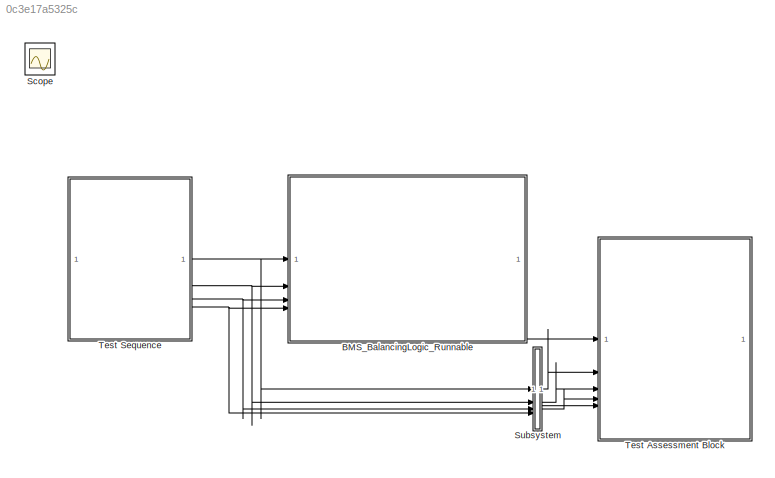
MODEL slx_0c3e17a5325c
KIND model
CONFIG AbsTol = auto
CONFIG EnableMultiTasking = on
CONFIG FixedStep = auto
CONFIG MaxStep = auto
CONFIG MinStep = auto
CONFIG RelTol = 1e-3
CONFIG SampleTimeConstraint = Unconstrained
CONFIG SolverName = FixedStepDiscrete
CONFIG StartTime = 0.0
CONFIG StopTime = 10.0
WORKSPACE source: mxarray member
WORKSPACE BATT: object (value not decoded)
WORKSPACE Schedule: object (value not decoded)
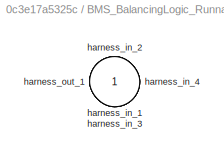
BLOCK [SubSystem] BMS_BalancingLogic_Runnable
  Priority = 2
  Tag = __SL_testing_harness_stub_
BLOCK [Inport] BMS_BalancingLogic_Runnable/harness_in_1
BLOCK [Inport] BMS_BalancingLogic_Runnable/harness_in_2
  Port = 2
BLOCK [Inport] BMS_BalancingLogic_Runnable/harness_in_3
  Port = 3
BLOCK [Inport] BMS_BalancingLogic_Runnable/harness_in_4
  Port = 4
BLOCK [Outport] BMS_BalancingLogic_Runnable/harness_out_1
BLOCK [Scope] Scope
  Floating = off
  IOType = viewer
  NumInputPorts = 1
  ScopeSpecificationString = Simulink.scopes.TimeScopeBlockCfg('CurrentConfiguration', extmgr.ConfigurationSet(extmgr.Configuration('Core','General UI',true),extmgr.Configuration('Core','Source UI',true),extmgr.Configuration('Sources','WiredSimulink',true),extmgr.Configuration('Visuals','Time Domain',true,'SerializedDisplays',{struct('MinYLimReal','-0.5','MaxYLimReal','4.5','YLabelReal','','MinYLimMag','0.00000','MaxYLimMag',...<+3690ch>
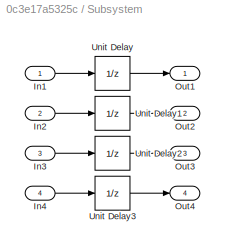
BLOCK [SubSystem] Subsystem
BLOCK [Inport] Subsystem/In1
BLOCK [Inport] Subsystem/In2
  Port = 2
BLOCK [Inport] Subsystem/In3
  Port = 3
BLOCK [Inport] Subsystem/In4
  Port = 4
BLOCK [Outport] Subsystem/Out1
BLOCK [Outport] Subsystem/Out2
  Port = 2
BLOCK [Outport] Subsystem/Out3
  Port = 3
BLOCK [Outport] Subsystem/Out4
  Port = 4
BLOCK [UnitDelay] Subsystem/Unit Delay
  HasFrameUpgradeWarning = on
  InitialCondition = BMS_State_Enum.BMS_Standby
  SampleTime = -1
BLOCK [UnitDelay] Subsystem/Unit Delay1
  HasFrameUpgradeWarning = on
  InitialCondition = 3.7 * ones(3, 1)
  SampleTime = -1
BLOCK [UnitDelay] Subsystem/Unit Delay2
  HasFrameUpgradeWarning = on
  InitialCondition = 3.7
  SampleTime = -1
BLOCK [UnitDelay] Subsystem/Unit Delay3
  HasFrameUpgradeWarning = on
  InitialCondition = 3.7
  SampleTime = -1
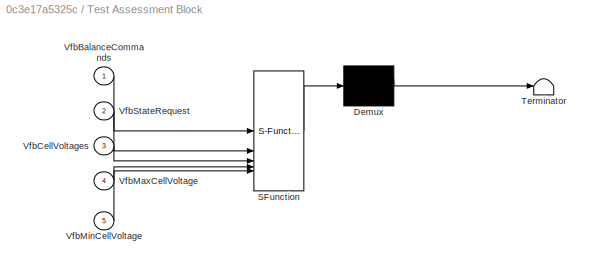
BLOCK [SubSystem] Test Assessment Block
  ErrorFcn = Stateflow.Translate.translate
  PermitHierarchicalResolution = ExplicitOnly
  SFBlockType = Test Sequence
  ShowPortLabels = none
  Tag = __SLT_ASMT__
  TreatAsAtomicUnit = on
BLOCK [Demux] Test Assessment Block/ Demux 
  Outputs = 1
BLOCK [S-Function] Test Assessment Block/ SFunction 
  EnableBusSupport = on
  FunctionName = sf_sfun
  Parameters = 1
  PortCounts = [5 1]
  SFcnIsStateOwnerBlock = off
  SFunctionDeploymentMode = off
  Tag = Stateflow S-Function 1
BLOCK [Terminator] Test Assessment Block/ Terminator 
BLOCK [Inport] Test Assessment Block/VfbBalanceCommands
BLOCK [Inport] Test Assessment Block/VfbCellVoltages
  Port = 3
BLOCK [Inport] Test Assessment Block/VfbMaxCellVoltage
  Port = 4
BLOCK [Inport] Test Assessment Block/VfbMinCellVoltage
  Port = 5
BLOCK [Inport] Test Assessment Block/VfbStateRequest
  Port = 2
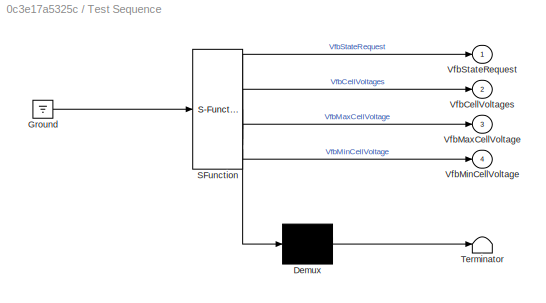
BLOCK [SubSystem] Test Sequence
  ErrorFcn = Stateflow.Translate.translate
  PermitHierarchicalResolution = ExplicitOnly
  SFBlockType = Test Sequence
  ShowPortLabels = none
  TreatAsAtomicUnit = on
BLOCK [Demux] Test Sequence/ Demux 
  Outputs = 1
BLOCK [Ground] Test Sequence/ Ground 
BLOCK [S-Function] Test Sequence/ SFunction 
  EnableBusSupport = on
  FunctionName = sf_sfun
  Parameters = 1
  PortCounts = [1 5]
  SFcnIsStateOwnerBlock = off
  SFunctionDeploymentMode = off
  Tag = Stateflow S-Function 4
BLOCK [Terminator] Test Sequence/ Terminator 
BLOCK [Outport] Test Sequence/VfbCellVoltages
  Port = 2
BLOCK [Outport] Test Sequence/VfbMaxCellVoltage
  Port = 3
BLOCK [Outport] Test Sequence/VfbMinCellVoltage
  Port = 4
BLOCK [Outport] Test Sequence/VfbStateRequest
LINE BMS_BalancingLogic_Runnable:1 -> Test Assessment Block:1
LINE Subsystem/In1:1 -> Subsystem/Unit Delay:1
LINE Subsystem/In2:1 -> Subsystem/Unit Delay1:1
LINE Subsystem/In3:1 -> Subsystem/Unit Delay2:1
LINE Subsystem/In4:1 -> Subsystem/Unit Delay3:1
LINE Subsystem/Unit Delay1:1 -> Subsystem/Out2:1
LINE Subsystem/Unit Delay2:1 -> Subsystem/Out3:1
LINE Subsystem/Unit Delay3:1 -> Subsystem/Out4:1
LINE Subsystem/Unit Delay:1 -> Subsystem/Out1:1
LINE Subsystem:1 -> Test Assessment Block:2
LINE Subsystem:2 -> Test Assessment Block:3
LINE Subsystem:3 -> Test Assessment Block:4
LINE Subsystem:4 -> Test Assessment Block:5
NET Test Sequence:1 -> BMS_BalancingLogic_Runnable:1, Subsystem:1
NET Test Sequence:2 -> BMS_BalancingLogic_Runnable:2, Subsystem:2
NET Test Sequence:3 -> BMS_BalancingLogic_Runnable:3, Subsystem:3
NET Test Sequence:4 -> BMS_BalancingLogic_Runnable:4, Subsystem:4
note: NET lines group one-source signal fan-out (src -> all destinations, sorted); 1:1 wires keep LINE
CHART Test Assessment Block states=8 transitions=24
  STATE_LABEL 'Dynamic'
  STATE_LABEL 'Run'
  STATE_LABEL 'step_1_0 \n\n Flag = (VfbMaxCellVoltage - VfbMinCellVoltage) >= (THR - 1e-5);\n if state == 0 && (t - T_off) > 5 && Flag\n     state = 1;\n elseif state == 1 && (t - T_on) > 10 && ~Flag\n     state = 0;\n elseif state == 1 && Flag\n     state = 2;\n end'  <repeated x3 — deduplicated; at blocks: Test Assessment Block>
  STATE_LABEL "step_1_0_1\n    verify( all(VfbBalanceCommands == [false false false]'), ...\n        'Driving or Fault State - VfbBalanceCommands should be [0 0 0]');\n    if t\n        T_on = t;\n    end\n    state = 0;\n    end"  <repeated x3 — deduplicated; at blocks: Test Assessment Block>
  STATE_LABEL "step_1_0_2\n    verify( all(VfbBalanceCommands == [false false false]'), ...\n        'No cell imbalance – VfbBalanceCommands should be [0 0 0]' );\n    if t\n        T_on = t;\n    end\n    end"  <repeated x3 — deduplicated; at blocks: Test Assessment Block>
  STATE_LABEL "step_1_0_3\n    verify( all(VfbBalanceCommands == [false false false]'), ...\n        'Balancing Waiting - VfbBalanceCommands should be [0 0 0]');\n    T_off = t;\n    THR = THR_ON;\n    end"  <repeated x3 — deduplicated; at blocks: Test Assessment Block>
  STATE_LABEL "step_1_0_5\n    verify( all(VfbBalanceCommands == boolean( (VfbCellVoltages - VfbMinCellVoltage)  > THR_OFF )), ...\n        'Balancing Active - VfbBalanceCommands should be [1 0 0]');\n    T_off = t; T_on = t;\n    THR = THR_OFF;\n    end"  <repeated x3 — deduplicated; at blocks: Test Assessment Block>
  STATE_LABEL 'step_1_0_4\nT_off\nT_on\nt-1\nFlag'
  STATE_LABEL '[~in(Dynamic.Run.step_1_0.step_1_0_1)]'
  STATE_LABEL '[VfbStateRequest ~= BMS_State_Enum.BMS_Balancing\n]'
  STATE_LABEL '[state == 0\n]'
  STATE_LABEL '[~in(Dynamic.Run.step_1_0.step_1_0_2)]'
  STATE_LABEL '[state == 1 ||  (state == 2 && ~Flag)\n]'
  STATE_LABEL '[~in(Dynamic.Run.step_1_0.step_1_0_3)]'
  STATE_LABEL '[state == 2 && Flag\n]'
  STATE_LABEL '[~in(Dynamic.Run.step_1_0.step_1_0_5)]'
  STATE_LABEL '[~in(Dynamic.Run.step_1_0.step_1_0_4)]'
  STATE_LABEL 'Run'
  STATE_LABEL 'step_1_0_4\nT_off\nT_on\nt-1\nFlag'
  STATE_LABEL '[~in(Dynamic.Run.step_1_0.step_1_0_1)]'
  STATE_LABEL '[VfbStateRequest ~= BMS_State_Enum.BMS_Balancing\n]'
  STATE_LABEL '[state == 0\n]'
  STATE_LABEL '[~in(Dynamic.Run.step_1_0.step_1_0_2)]'
  STATE_LABEL '[state == 1 ||  (state == 2 && ~Flag)\n]'
  STATE_LABEL '[~in(Dynamic.Run.step_1_0.step_1_0_3)]'
  STATE_LABEL '[state == 2 && Flag\n]'
  STATE_LABEL '[~in(Dynamic.Run.step_1_0.step_1_0_5)]'
  STATE_LABEL '[~in(Dynamic.Run.step_1_0.step_1_0_4)]'
  STATE_LABEL 'step_1_0_4\nT_off\nT_on\nt-1\nFlag'
  STATE_LABEL '[~in(Dynamic.Run.step_1_0.step_1_0_1)]'
CHART Test Sequence states=21 transitions=22
  STATE_LABEL 'Dynamic'
  STATE_LABEL 'Run\n\nVfbStateRequest = BMS_State_Enum.BMS_Standby;\nVfbCellVoltages = single(3.7 * ones(3, 1));\nVfbMaxCellVoltage = single(3.7);\nVfbMinCellVoltage  = single(3.7);'
  STATE_LABEL "S1\n\nVfbStateRequest = BMS_State_Enum.BMS_Balancing;\nVfbCellVoltages = single([3.725, 3.700, 3.700]');\nVfbMaxCellVoltage = single(3.725);\nVfbMinCellVoltage  = single(3.700);"
  STATE_LABEL 'S2\n\nVfbStateRequest = BMS_State_Enum.BMS_Balancing;\nVfbCellVoltages = single(3.7 * ones(3, 1));\nVfbMaxCellVoltage = single(3.7);\nVfbMinCellVoltage  = single(3.7);'
  STATE_LABEL "S3\n\nVfbStateRequest = BMS_State_Enum.BMS_Balancing;\nVfbCellVoltages = single([3.725, 3.700, 3.700]');\nVfbMaxCellVoltage = single(3.725);\nVfbMinCellVoltage  = single(3.700);"
  STATE_LABEL "S4\n\nVfbStateRequest = BMS_State_Enum.BMS_Balancing;\nVfbCellVoltages = single([3.725, 3.700, 3.700]');\nVfbMaxCellVoltage = single(3.725);\nVfbMinCellVoltage  = single(3.700);"
  STATE_LABEL "S5\n\nVfbStateRequest = BMS_State_Enum.BMS_Balancing;\nVfbCellVoltages = single([3.725, 3.700, 3.700]');\nVfbMaxCellVoltage = single(3.725);\nVfbMinCellVoltage  = single(3.700);"
  STATE_LABEL "S6\n\nVfbStateRequest = BMS_State_Enum.BMS_Fault;\nVfbCellVoltages = single([3.725, 3.700, 3.700]');\nVfbMaxCellVoltage = single(3.725);\nVfbMinCellVoltage  = single(3.700);"
  STATE_LABEL "S7\n\nVfbStateRequest = BMS_State_Enum.BMS_Balancing;\nVfbCellVoltages = single([3.725, 3.700, 3.700]');\nVfbMaxCellVoltage = single(3.725);\nVfbMinCellVoltage  = single(3.700);"
  STATE_LABEL "S8\n\nVfbStateRequest = BMS_State_Enum.BMS_Balancing;\nVfbCellVoltages = single([3.720, 3.700, 3.700]');\nVfbMaxCellVoltage = single(3.720);\nVfbMinCellVoltage  = single(3.700);"
  STATE_LABEL "S9\n\nVfbStateRequest = BMS_State_Enum.BMS_Balancing;\nVfbCellVoltages = single([3.725, 3.700, 3.700]');\nVfbMaxCellVoltage = single(3.725);\nVfbMinCellVoltage  = single(3.700);"
  STATE_LABEL "S10\n\nVfbStateRequest = BMS_State_Enum.BMS_Standby;\nVfbCellVoltages = single([3.710, 3.700, 3.700]');\nVfbMaxCellVoltage = single(3.710);\nVfbMinCellVoltage  = single(3.700);"
  STATE_LABEL 'S11\n\nVfbStateRequest = BMS_State_Enum.BMS_Balancing;\nVfbCellVoltages = single(3.7 * ones(3, 1));\nVfbMaxCellVoltage = single(3.7);\nVfbMinCellVoltage  = single(3.7);'
  STATE_LABEL 'S12\n\n'
  STATE_LABEL "end\n\ncoder.extrinsic('set_param');\nset_param(bdroot, 'SimulationCommand', 'stop');"
  STATE_LABEL '[\nafter(1, sec)\n]'
  STATE_LABEL '[\nafter(4.25, sec)\n]'
  STATE_LABEL '[\nafter(9.75, sec)\n]'
  STATE_LABEL '[\nafter(1, sec)\n]'
  STATE_LABEL '[\nafter(1, sec)\n]'
  STATE_LABEL '[\nafter(5, sec)\n]'
  STATE_LABEL '[\nafter(1, sec)\n]'
  STATE_LABEL '[\nafter(4.75, sec)\n]'
  STATE_LABEL '[\nafter(1.25, sec)\n]'
  STATE_LABEL '[\nafter(10, sec)\n]'
  STATE_LABEL '[\nafter(5, sec)\n]'
  STATE_LABEL '[\nafter(10, sec)\n]'
  STATE_LABEL '[\nafter(5, sec)\n]'
  STATE_LABEL 'Run\n\nVfbStateRequest = BMS_State_Enum.BMS_Standby;\nVfbCellVoltages = single(3.7 * ones(3, 1));\nVfbMaxCellVoltage = single(3.7);\nVfbMinCellVoltage  = single(3.7);'
  STATE_LABEL "S1\n\nVfbStateRequest = BMS_State_Enum.BMS_Balancing;\nVfbCellVoltages = single([3.725, 3.700, 3.700]');\nVfbMaxCellVoltage = single(3.725);\nVfbMinCellVoltage  = single(3.700);"
  STATE_LABEL 'S2\n\nVfbStateRequest = BMS_State_Enum.BMS_Balancing;\nVfbCellVoltages = single(3.7 * ones(3, 1));\nVfbMaxCellVoltage = single(3.7);\nVfbMinCellVoltage  = single(3.7);'
  STATE_LABEL "S3\n\nVfbStateRequest = BMS_State_Enum.BMS_Balancing;\nVfbCellVoltages = single([3.725, 3.700, 3.700]');\nVfbMaxCellVoltage = single(3.725);\nVfbMinCellVoltage  = single(3.700);"
  STATE_LABEL "S4\n\nVfbStateRequest = BMS_State_Enum.BMS_Balancing;\nVfbCellVoltages = single([3.725, 3.700, 3.700]');\nVfbMaxCellVoltage = single(3.725);\nVfbMinCellVoltage  = single(3.700);"
  STATE_LABEL "S5\n\nVfbStateRequest = BMS_State_Enum.BMS_Balancing;\nVfbCellVoltages = single([3.725, 3.700, 3.700]');\nVfbMaxCellVoltage = single(3.725);\nVfbMinCellVoltage  = single(3.700);"
  STATE_LABEL "S6\n\nVfbStateRequest = BMS_State_Enum.BMS_Fault;\nVfbCellVoltages = single([3.725, 3.700, 3.700]');\nVfbMaxCellVoltage = single(3.725);\nVfbMinCellVoltage  = single(3.700);"
  STATE_LABEL "S7\n\nVfbStateRequest = BMS_State_Enum.BMS_Balancing;\nVfbCellVoltages = single([3.725, 3.700, 3.700]');\nVfbMaxCellVoltage = single(3.725);\nVfbMinCellVoltage  = single(3.700);"
  STATE_LABEL "S8\n\nVfbStateRequest = BMS_State_Enum.BMS_Balancing;\nVfbCellVoltages = single([3.720, 3.700, 3.700]');\nVfbMaxCellVoltage = single(3.720);\nVfbMinCellVoltage  = single(3.700);"
  STATE_LABEL "S9\n\nVfbStateRequest = BMS_State_Enum.BMS_Balancing;\nVfbCellVoltages = single([3.725, 3.700, 3.700]');\nVfbMaxCellVoltage = single(3.725);\nVfbMinCellVoltage  = single(3.700);"
  STATE_LABEL "S10\n\nVfbStateRequest = BMS_State_Enum.BMS_Standby;\nVfbCellVoltages = single([3.710, 3.700, 3.700]');\nVfbMaxCellVoltage = single(3.710);\nVfbMinCellVoltage  = single(3.700);"
  STATE_LABEL 'S11\n\nVfbStateRequest = BMS_State_Enum.BMS_Balancing;\nVfbCellVoltages = single(3.7 * ones(3, 1));\nVfbMaxCellVoltage = single(3.7);\nVfbMinCellVoltage  = single(3.7);'
